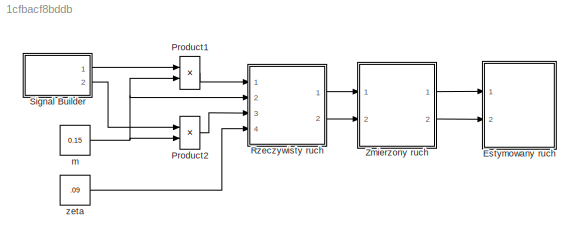
MODEL slx_1cfbacf8bddb
KIND model
CONFIG AbsTol = auto
CONFIG EnableMultiTasking = off
CONFIG FixedStep = 0.01
CONFIG MaxStep = auto
CONFIG MinStep = auto
CONFIG RelTol = 1e-3
CONFIG SampleTimeConstraint = Unconstrained
CONFIG Solver = FixedStepAuto
CONFIG SolverName = FixedStepAuto
CONFIG StartTime = 0.0
CONFIG StopTime = 15
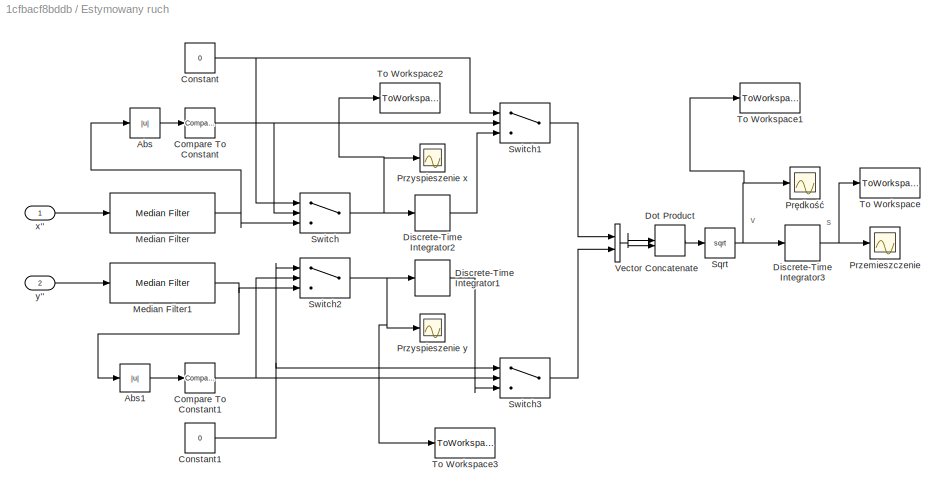
BLOCK [SubSystem] Estymowany ruch
  Ports = [2]
  RequestExecContextInheritance = off
BLOCK [Abs] Estymowany ruch/Abs
  SaturateOnIntegerOverflow = off
BLOCK [Abs] Estymowany ruch/Abs1
  SaturateOnIntegerOverflow = off
BLOCK [Reference] Estymowany ruch/Compare To Constant  REF=simulink/Logic and Bit
Operations/Compare
To Constant
  Ports = [1, 1]
  SourceBlock = simulink/Logic and Bit\nOperations/Compare\nTo Constant
  SourceProductBaseCode = SL
  SourceProductName = Simulink
  SourceType = Compare To Constant
BLOCK [Reference] Estymowany ruch/Compare To Constant1  REF=simulink/Logic and Bit
Operations/Compare
To Constant
  Ports = [1, 1]
  SourceBlock = simulink/Logic and Bit\nOperations/Compare\nTo Constant
  SourceProductBaseCode = SL
  SourceProductName = Simulink
  SourceType = Compare To Constant
BLOCK [Constant] Estymowany ruch/Constant
  Value = 0
BLOCK [Constant] Estymowany ruch/Constant1
  Value = 0
BLOCK [DiscreteIntegrator] Estymowany ruch/Discrete-Time Integrator1
  ICPrevOutput = DiscIntNeverNeededParam
  ICPrevScaledInput = DiscIntNeverNeededParam
  InitialConditionSetting = Auto
  Ports = [1, 1]
  SampleTime = 0.01
BLOCK [DiscreteIntegrator] Estymowany ruch/Discrete-Time Integrator2
  ICPrevOutput = DiscIntNeverNeededParam
  ICPrevScaledInput = DiscIntNeverNeededParam
  InitialConditionSetting = Auto
  Ports = [1, 1]
  SampleTime = 0.01
BLOCK [DiscreteIntegrator] Estymowany ruch/Discrete-Time Integrator3
  ICPrevOutput = DiscIntNeverNeededParam
  ICPrevScaledInput = DiscIntNeverNeededParam
  InitialConditionSetting = Auto
  Ports = [1, 1]
  SampleTime = 0.01
BLOCK [DotProduct] Estymowany ruch/Dot Product
  OutDataTypeStr = Inherit: Inherit via internal rule
BLOCK [Reference] Estymowany ruch/Median Filter  REF=dspstat3/Median
Filter
  Ports = [1, 1]
  SourceBlock = dspstat3/Median\nFilter
  SourceProductBaseCode = DS
  SourceProductName = DSP System Toolbox
  SourceType = dsp.MedianFilter
BLOCK [Reference] Estymowany ruch/Median Filter1  REF=dspstat3/Median
Filter
  Ports = [1, 1]
  SourceBlock = dspstat3/Median\nFilter
  SourceProductBaseCode = DS
  SourceProductName = DSP System Toolbox
  SourceType = dsp.MedianFilter
BLOCK [Scope] Estymowany ruch/Przemieszczenie
  Floating = off
  NumInputPorts = 1
  Ports = [1]
  ScopeSpecificationString = Simulink.scopes.TimeScopeBlockCfg('CurrentConfiguration', extmgr.ConfigurationSet(extmgr.Configuration('Core','General UI',true),extmgr.Configuration('Core','Source UI',true),extmgr.Configuration('Sources','WiredSimulink',true),extmgr.Configuration('Visuals','Time Domain',true,'SerializedDisplays',{struct('MinYLimReal','-0.40724','MaxYLimReal','3.66512','YLabelReal','','MinYLimMag','0.00000','MaxY...<+1386ch>
BLOCK [Scope] Estymowany ruch/Przyspieszenie x
  Floating = off
  NumInputPorts = 1
  Ports = [1]
  ScopeSpecificationString = Simulink.scopes.TimeScopeBlockCfg('CurrentConfiguration', extmgr.ConfigurationSet(extmgr.Configuration('Core','General UI',true),extmgr.Configuration('Core','Source UI',true),extmgr.Configuration('Sources','WiredSimulink',true,'DataLoggingVariableName','ScopeData7'),extmgr.Configuration('Visuals','Time Domain',true,'SerializedDisplays',{struct('MinYLimReal','-0.81861','MaxYLimReal','1.56622','YLab...<+1407ch>
BLOCK [Scope] Estymowany ruch/Przyspieszenie y
  Floating = off
  NumInputPorts = 1
  Ports = [1]
  ScopeSpecificationString = Simulink.scopes.TimeScopeBlockCfg('CurrentConfiguration', extmgr.ConfigurationSet(extmgr.Configuration('Core','General UI',true),extmgr.Configuration('Core','Source UI',true),extmgr.Configuration('Sources','WiredSimulink',true,'DataLoggingVariableName','ScopeData5'),extmgr.Configuration('Visuals','Time Domain',true,'SerializedDisplays',{struct('MinYLimReal','-0.7496','MaxYLimReal','1.48404','YLabe...<+1406ch>
BLOCK [Scope] Estymowany ruch/Prędkość
  Floating = off
  NumInputPorts = 1
  Ports = [1]
  ScopeSpecificationString = Simulink.scopes.TimeScopeBlockCfg('CurrentConfiguration', extmgr.ConfigurationSet(extmgr.Configuration('Core','General UI',true),extmgr.Configuration('Core','Source UI',true),extmgr.Configuration('Sources','WiredSimulink',true,'DataLoggingVariableName','ScopeData1'),extmgr.Configuration('Visuals','Time Domain',true,'SerializedDisplays',{struct('MinYLimReal','-0.15813','MaxYLimReal','1.42315','YLab...<+1405ch>
BLOCK [Sqrt] Estymowany ruch/Sqrt
BLOCK [Switch] Estymowany ruch/Switch
  Criteria = u2 > Threshold
  InputSameDT = off
  SaturateOnIntegerOverflow = off
BLOCK [Switch] Estymowany ruch/Switch1
  Criteria = u2 > Threshold
  InputSameDT = off
  SaturateOnIntegerOverflow = off
BLOCK [Switch] Estymowany ruch/Switch2
  Criteria = u2 > Threshold
  InputSameDT = off
  SaturateOnIntegerOverflow = off
BLOCK [Switch] Estymowany ruch/Switch3
  Criteria = u2 > Threshold
  InputSameDT = off
  SaturateOnIntegerOverflow = off
BLOCK [ToWorkspace] Estymowany ruch/To Workspace
  FixptAsFi = on
  MaxDataPoints = inf
  Ports = [1]
  SampleTime = -1
  Save2DSignal = 2-D array (concatenate along first dimension)
  VariableName = es
BLOCK [ToWorkspace] Estymowany ruch/To Workspace1
  FixptAsFi = on
  MaxDataPoints = inf
  Ports = [1]
  SampleTime = -1
  Save2DSignal = 2-D array (concatenate along first dimension)
  VariableName = ev
BLOCK [ToWorkspace] Estymowany ruch/To Workspace2
  FixptAsFi = on
  MaxDataPoints = inf
  Ports = [1]
  SampleTime = -1
  Save2DSignal = 2-D array (concatenate along first dimension)
  VariableName = ex
BLOCK [ToWorkspace] Estymowany ruch/To Workspace3
  FixptAsFi = on
  MaxDataPoints = inf
  Ports = [1]
  SampleTime = -1
  Save2DSignal = 2-D array (concatenate along first dimension)
  VariableName = ey
BLOCK [Concatenate] Estymowany ruch/Vector Concatenate
  Ports = [2, 1]
BLOCK [Inport] Estymowany ruch/x''
  IconDisplay = Port number
BLOCK [Inport] Estymowany ruch/y''
  IconDisplay = Port number
  Port = 2
BLOCK [Product] Product1
  InputSameDT = off
  Inputs = */
  OutDataTypeStr = Inherit: Inherit via internal rule
  Ports = [2, 1]
  RndMeth = Floor
  SaturateOnIntegerOverflow = off
BLOCK [Product] Product2
  InputSameDT = off
  Inputs = */
  OutDataTypeStr = Inherit: Inherit via internal rule
  Ports = [2, 1]
  RndMeth = Floor
  SaturateOnIntegerOverflow = off
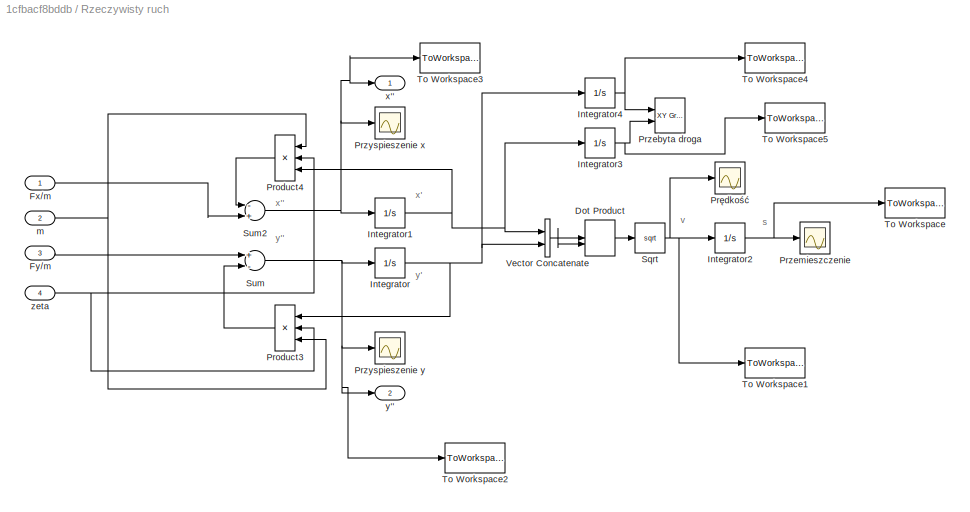
BLOCK [SubSystem] Rzeczywisty ruch
  Ports = [4, 2]
  RequestExecContextInheritance = off
BLOCK [DotProduct] Rzeczywisty ruch/Dot Product
  OutDataTypeStr = Inherit: Inherit via internal rule
BLOCK [Inport] Rzeczywisty ruch/Fx//m
  IconDisplay = Port number
BLOCK [Inport] Rzeczywisty ruch/Fy//m
  IconDisplay = Port number
  Port = 3
BLOCK [Integrator] Rzeczywisty ruch/Integrator
  Ports = [1, 1]
BLOCK [Integrator] Rzeczywisty ruch/Integrator1
  Ports = [1, 1]
BLOCK [Integrator] Rzeczywisty ruch/Integrator2
  Ports = [1, 1]
BLOCK [Integrator] Rzeczywisty ruch/Integrator3
  Ports = [1, 1]
BLOCK [Integrator] Rzeczywisty ruch/Integrator4
  Ports = [1, 1]
BLOCK [Product] Rzeczywisty ruch/Product3
  InputSameDT = off
  Inputs = **/
  OutDataTypeStr = Inherit: Inherit via internal rule
  Ports = [3, 1]
  RndMeth = Floor
  SaturateOnIntegerOverflow = off
BLOCK [Product] Rzeczywisty ruch/Product4
  InputSameDT = off
  Inputs = /**
  OutDataTypeStr = Inherit: Inherit via internal rule
  Ports = [3, 1]
  RndMeth = Floor
  SaturateOnIntegerOverflow = off
BLOCK [Reference] Rzeczywisty ruch/Przebyta droga  REF=simulink/Sinks/XY Graph
  Ports = [2]
  SourceBlock = simulink/Sinks/XY Graph
  SourceProductBaseCode = SL
  SourceProductName = Simulink
  SourceType = XY scope.
BLOCK [Scope] Rzeczywisty ruch/Przemieszczenie
  Floating = off
  NumInputPorts = 1
  Ports = [1]
  ScopeSpecificationString = Simulink.scopes.TimeScopeBlockCfg('CurrentConfiguration', extmgr.ConfigurationSet(extmgr.Configuration('Core','General UI',true),extmgr.Configuration('Core','Source UI',true),extmgr.Configuration('Sources','WiredSimulink',true),extmgr.Configuration('Visuals','Time Domain',true,'SerializedDisplays',{struct('MinYLimReal','-0.40695','MaxYLimReal','3.66252','YLabelReal','','MinYLimMag','0.00000','MaxY...<+1386ch>
BLOCK [Scope] Rzeczywisty ruch/Przyspieszenie x
  Floating = off
  NumInputPorts = 1
  Ports = [1]
  ScopeSpecificationString = Simulink.scopes.TimeScopeBlockCfg('CurrentConfiguration', extmgr.ConfigurationSet(extmgr.Configuration('Core','General UI',true),extmgr.Configuration('Core','Source UI',true),extmgr.Configuration('Sources','WiredSimulink',true,'DataLoggingVariableName','ScopeData2'),extmgr.Configuration('Visuals','Time Domain',true,'SerializedDisplays',{struct('MinYLimReal','-0.84345','MaxYLimReal','1.5752','YLabe...<+1413ch>
BLOCK [Scope] Rzeczywisty ruch/Przyspieszenie y
  Floating = off
  NumInputPorts = 1
  Ports = [1]
  ScopeSpecificationString = Simulink.scopes.TimeScopeBlockCfg('CurrentConfiguration', extmgr.ConfigurationSet(extmgr.Configuration('Core','General UI',true),extmgr.Configuration('Core','Source UI',true),extmgr.Configuration('Sources','WiredSimulink',true,'DataLoggingVariableName','ScopeData3'),extmgr.Configuration('Visuals','Time Domain',true,'SerializedDisplays',{struct('MinYLimReal','-0.84345','MaxYLimReal','1.5752','YLabe...<+1358ch>
BLOCK [Scope] Rzeczywisty ruch/Prędkość
  Floating = off
  NumInputPorts = 1
  Ports = [1]
  ScopeSpecificationString = Simulink.scopes.TimeScopeBlockCfg('CurrentConfiguration', extmgr.ConfigurationSet(extmgr.Configuration('Core','General UI',true),extmgr.Configuration('Core','Source UI',true),extmgr.Configuration('Sources','WiredSimulink',true,'DataLoggingVariableName','ScopeData1'),extmgr.Configuration('Visuals','Time Domain',true,'SerializedDisplays',{struct('MinYLimReal','-0.15597','MaxYLimReal','1.40377','YLab...<+1363ch>
BLOCK [Sqrt] Rzeczywisty ruch/Sqrt
BLOCK [Sum] Rzeczywisty ruch/Sum
  InputSameDT = off
  Inputs = +-
  OutDataTypeStr = Inherit: Inherit via internal rule
  Ports = [2, 1]
  SaturateOnIntegerOverflow = off
BLOCK [Sum] Rzeczywisty ruch/Sum2
  InputSameDT = off
  Inputs = -+
  OutDataTypeStr = Inherit: Inherit via internal rule
  Ports = [2, 1]
  SaturateOnIntegerOverflow = off
BLOCK [ToWorkspace] Rzeczywisty ruch/To Workspace
  FixptAsFi = on
  MaxDataPoints = inf
  Ports = [1]
  SampleTime = -1
  Save2DSignal = 3-D array (concatenate along third dimension)
  SaveFormat = Timeseries
  VariableName = rs
BLOCK [ToWorkspace] Rzeczywisty ruch/To Workspace1
  FixptAsFi = on
  MaxDataPoints = inf
  Ports = [1]
  SampleTime = -1
  Save2DSignal = 3-D array (concatenate along third dimension)
  SaveFormat = Timeseries
  VariableName = rv
BLOCK [ToWorkspace] Rzeczywisty ruch/To Workspace2
  FixptAsFi = on
  MaxDataPoints = inf
  Ports = [1]
  SampleTime = -1
  Save2DSignal = 3-D array (concatenate along third dimension)
  SaveFormat = Timeseries
  VariableName = ry
BLOCK [ToWorkspace] Rzeczywisty ruch/To Workspace3
  FixptAsFi = on
  MaxDataPoints = inf
  Ports = [1]
  SampleTime = -1
  Save2DSignal = 3-D array (concatenate along third dimension)
  SaveFormat = Timeseries
  VariableName = rx
BLOCK [ToWorkspace] Rzeczywisty ruch/To Workspace4
  FixptAsFi = on
  MaxDataPoints = inf
  Ports = [1]
  SampleTime = -1
  Save2DSignal = 2-D array (concatenate along first dimension)
  VariableName = xs
BLOCK [ToWorkspace] Rzeczywisty ruch/To Workspace5
  FixptAsFi = on
  MaxDataPoints = inf
  Ports = [1]
  SampleTime = -1
  Save2DSignal = 2-D array (concatenate along first dimension)
  VariableName = ys
BLOCK [Concatenate] Rzeczywisty ruch/Vector Concatenate
  Ports = [2, 1]
BLOCK [Inport] Rzeczywisty ruch/m
  IconDisplay = Port number
  Port = 2
BLOCK [Outport] Rzeczywisty ruch/x''
  IconDisplay = Port number
BLOCK [Outport] Rzeczywisty ruch/y''
  IconDisplay = Port number
  Port = 2
BLOCK [Inport] Rzeczywisty ruch/zeta
  IconDisplay = Port number
  Port = 4
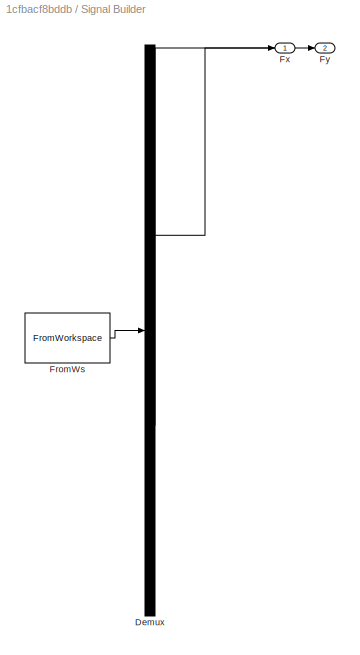
BLOCK [SubSystem] Signal Builder
  ClipboardFcn = sigbuilder_block('clipboard');
  CloseFcn = sigbuilder_block('close');
  ContinueFcn = sigbuilder_block('continue');
  CopyFcn = sigbuilder_block('copy');
  DeleteFcn = sigbuilder_block('delete');
  LoadFcn = sigbuilder_block('load');
  MaskHideContents = on
  ModelCloseFcn = sigbuilder_block('modelClose');
  NameChangeFcn = sigbuilder_block('namechange');
  OpenFcn = sigbuilder_block('open',[75.5 61.5 550.5 362.5 ]);
  PauseFcn = sigbuilder_block('pause');
  Ports = [0, 2]
  PreSaveFcn = sigbuilder_block('preSave');
  RequestExecContextInheritance = off
  StartFcn = sigbuilder_block('start');
  StopFcn = sigbuilder_block('stop');
  Tag = STV Subsys
BLOCK [Demux] Signal Builder/Demux
  Outputs = 2
  Ports = [1, 2]
  Tag = STV Demux
BLOCK [FromWorkspace] Signal Builder/FromWs
  SampleTime = 0
  Tag = STV FromWs
  VariableName = tuvar
  ZeroCross = on
BLOCK [Outport] Signal Builder/Fx
  IconDisplay = Port number
  Tag = STV Outport
BLOCK [Outport] Signal Builder/Fy
  IconDisplay = Port number
  Port = 2
  Tag = STV Outport
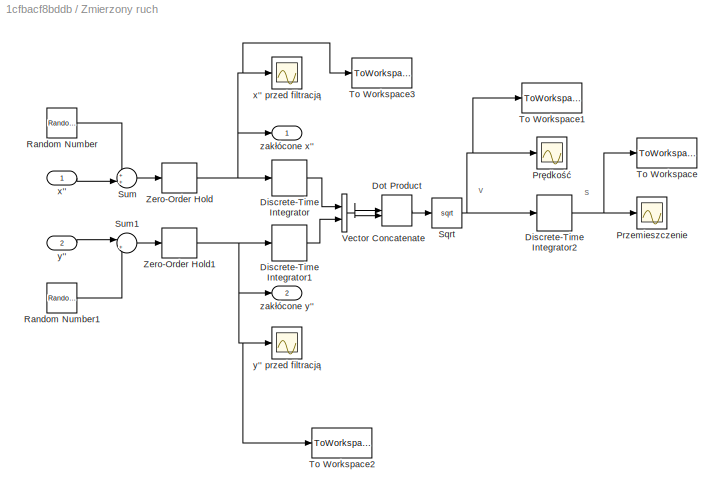
BLOCK [SubSystem] Zmierzony ruch
  Ports = [2, 2]
  RequestExecContextInheritance = off
BLOCK [DiscreteIntegrator] Zmierzony ruch/Discrete-Time Integrator
  ICPrevOutput = DiscIntNeverNeededParam
  ICPrevScaledInput = DiscIntNeverNeededParam
  InitialConditionSetting = Auto
  Ports = [1, 1]
  SampleTime = 0.01
BLOCK [DiscreteIntegrator] Zmierzony ruch/Discrete-Time Integrator1
  ICPrevOutput = DiscIntNeverNeededParam
  ICPrevScaledInput = DiscIntNeverNeededParam
  InitialConditionSetting = Auto
  Ports = [1, 1]
  SampleTime = 0.01
BLOCK [DiscreteIntegrator] Zmierzony ruch/Discrete-Time Integrator2
  ICPrevOutput = DiscIntNeverNeededParam
  ICPrevScaledInput = DiscIntNeverNeededParam
  InitialConditionSetting = Auto
  Ports = [1, 1]
  SampleTime = 0.01
BLOCK [DotProduct] Zmierzony ruch/Dot Product
  OutDataTypeStr = Inherit: Inherit via internal rule
BLOCK [Scope] Zmierzony ruch/Przemieszczenie
  Floating = off
  NumInputPorts = 1
  Ports = [1]
  ScopeSpecificationString = Simulink.scopes.TimeScopeBlockCfg('CurrentConfiguration', extmgr.ConfigurationSet(extmgr.Configuration('Core','General UI',true),extmgr.Configuration('Core','Source UI',true),extmgr.Configuration('Sources','WiredSimulink',true),extmgr.Configuration('Visuals','Time Domain',true,'SerializedDisplays',{struct('MinYLimReal','-0.50337','MaxYLimReal','4.53031','YLabelReal','','MinYLimMag','0.00000','MaxY...<+1373ch>
BLOCK [Scope] Zmierzony ruch/Prędkość
  Floating = off
  NumInputPorts = 1
  Ports = [1]
  ScopeSpecificationString = Simulink.scopes.TimeScopeBlockCfg('CurrentConfiguration', extmgr.ConfigurationSet(extmgr.Configuration('Core','General UI',true),extmgr.Configuration('Core','Source UI',true),extmgr.Configuration('Sources','WiredSimulink',true,'DataLoggingVariableName','ScopeData1'),extmgr.Configuration('Visuals','Time Domain',true,'SerializedDisplays',{struct('MinYLimReal','-0.15862','MaxYLimReal','1.42756','YLab...<+1405ch>
BLOCK [RandomNumber] Zmierzony ruch/Random Number
  Mean = 0.005
  SampleTime = 0.01
  Variance = 0.005
BLOCK [RandomNumber] Zmierzony ruch/Random Number1
  Mean = 0.005
  SampleTime = 0.01
  Variance = 0.005
BLOCK [Sqrt] Zmierzony ruch/Sqrt
BLOCK [Sum] Zmierzony ruch/Sum
  IconShape = round
  InputSameDT = off
  Inputs = ++|
  OutDataTypeStr = Inherit: Inherit via internal rule
  Ports = [2, 1]
  SaturateOnIntegerOverflow = off
BLOCK [Sum] Zmierzony ruch/Sum1
  IconShape = round
  InputSameDT = off
  Inputs = |++
  OutDataTypeStr = Inherit: Inherit via internal rule
  Ports = [2, 1]
  SaturateOnIntegerOverflow = off
BLOCK [ToWorkspace] Zmierzony ruch/To Workspace
  FixptAsFi = on
  MaxDataPoints = inf
  Ports = [1]
  SampleTime = -1
  Save2DSignal = 3-D array (concatenate along third dimension)
  SaveFormat = Timeseries
  VariableName = ms
BLOCK [ToWorkspace] Zmierzony ruch/To Workspace1
  FixptAsFi = on
  MaxDataPoints = inf
  Ports = [1]
  SampleTime = -1
  Save2DSignal = 3-D array (concatenate along third dimension)
  SaveFormat = Timeseries
  VariableName = mv
BLOCK [ToWorkspace] Zmierzony ruch/To Workspace2
  FixptAsFi = on
  MaxDataPoints = inf
  Ports = [1]
  SampleTime = -1
  Save2DSignal = 3-D array (concatenate along third dimension)
  SaveFormat = Timeseries
  VariableName = my
BLOCK [ToWorkspace] Zmierzony ruch/To Workspace3
  FixptAsFi = on
  MaxDataPoints = inf
  Ports = [1]
  SampleTime = -1
  Save2DSignal = 3-D array (concatenate along third dimension)
  SaveFormat = Timeseries
  VariableName = mx
BLOCK [Concatenate] Zmierzony ruch/Vector Concatenate
  Ports = [2, 1]
BLOCK [ZeroOrderHold] Zmierzony ruch/Zero-Order Hold
  SampleTime = 0.01
BLOCK [ZeroOrderHold] Zmierzony ruch/Zero-Order Hold1
  SampleTime = 0.01
BLOCK [Inport] Zmierzony ruch/x''
  IconDisplay = Port number
BLOCK [Scope] Zmierzony ruch/x'' przed filtracją
  Floating = off
  NumInputPorts = 1
  Ports = [1]
  ScopeSpecificationString = Simulink.scopes.TimeScopeBlockCfg('CurrentConfiguration', extmgr.ConfigurationSet(extmgr.Configuration('Core','General UI',true),extmgr.Configuration('Core','Source UI',true),extmgr.Configuration('Sources','WiredSimulink',true,'DataLoggingVariableName','ScopeData4'),extmgr.Configuration('Visuals','Time Domain',true,'SerializedDisplays',{struct('MinYLimReal','-0.91581','MaxYLimReal','1.68307','YLab...<+1429ch>
BLOCK [Inport] Zmierzony ruch/y''
  IconDisplay = Port number
  Port = 2
BLOCK [Scope] Zmierzony ruch/y'' przed filtracją
  Floating = off
  NumInputPorts = 1
  Ports = [1]
  ScopeSpecificationString = Simulink.scopes.TimeScopeBlockCfg('CurrentConfiguration', extmgr.ConfigurationSet(extmgr.Configuration('Core','General UI',true),extmgr.Configuration('Core','Source UI',true),extmgr.Configuration('Sources','WiredSimulink',true,'DataLoggingVariableName','ScopeData6'),extmgr.Configuration('Visuals','Time Domain',true,'SerializedDisplays',{struct('MinYLimReal','-0.87455','MaxYLimReal','1.66453','YLab...<+1429ch>
BLOCK [Outport] Zmierzony ruch/zakłócone x''
  IconDisplay = Port number
BLOCK [Outport] Zmierzony ruch/zakłócone y''
  IconDisplay = Port number
  Port = 2
BLOCK [Constant] m
  Value = 0.15
BLOCK [Constant] zeta
  Value = .09
ANNOTATION Estymowany ruch: s
ANNOTATION Estymowany ruch: v
ANNOTATION Rzeczywisty ruch: s
ANNOTATION Rzeczywisty ruch: v
ANNOTATION Rzeczywisty ruch: x'
ANNOTATION Rzeczywisty ruch: x''
ANNOTATION Rzeczywisty ruch: y'
ANNOTATION Rzeczywisty ruch: y''
ANNOTATION Zmierzony ruch: s
ANNOTATION Zmierzony ruch: v
LINE Estymowany ruch/Abs1:1 -> Estymowany ruch/Compare To Constant1:1
LINE Estymowany ruch/Abs:1 -> Estymowany ruch/Compare To Constant:1
NET Estymowany ruch/Compare To Constant1:1 -> Estymowany ruch/Switch2:2, Estymowany ruch/Switch3:2
NET Estymowany ruch/Compare To Constant:1 -> Estymowany ruch/Switch1:2, Estymowany ruch/Switch:2
NET Estymowany ruch/Constant1:1 -> Estymowany ruch/Switch2:1, Estymowany ruch/Switch3:1
NET Estymowany ruch/Constant:1 -> Estymowany ruch/Switch1:1, Estymowany ruch/Switch:1
LINE Estymowany ruch/Discrete-Time Integrator1:1 -> Estymowany ruch/Switch3:3
LINE Estymowany ruch/Discrete-Time Integrator2:1 -> Estymowany ruch/Switch1:3
NET Estymowany ruch/Discrete-Time Integrator3:1 -> Estymowany ruch/Przemieszczenie:1, Estymowany ruch/To Workspace:1
LINE Estymowany ruch/Dot Product:1 -> Estymowany ruch/Sqrt:1
NET Estymowany ruch/Median Filter1:1 -> Estymowany ruch/Abs1:1, Estymowany ruch/Switch2:3
NET Estymowany ruch/Median Filter:1 -> Estymowany ruch/Abs:1, Estymowany ruch/Switch:3
NET Estymowany ruch/Sqrt:1 -> Estymowany ruch/Discrete-Time Integrator3:1, Estymowany ruch/Prędkość:1, Estymowany ruch/To Workspace1:1
LINE Estymowany ruch/Switch1:1 -> Estymowany ruch/Vector Concatenate:1
NET Estymowany ruch/Switch2:1 -> Estymowany ruch/Discrete-Time Integrator1:1, Estymowany ruch/Przyspieszenie y:1, Estymowany ruch/To Workspace3:1
LINE Estymowany ruch/Switch3:1 -> Estymowany ruch/Vector Concatenate:2
NET Estymowany ruch/Switch:1 -> Estymowany ruch/Discrete-Time Integrator2:1, Estymowany ruch/Przyspieszenie x:1, Estymowany ruch/To Workspace2:1
NET Estymowany ruch/Vector Concatenate:1 -> Estymowany ruch/Dot Product:1, Estymowany ruch/Dot Product:2
LINE Estymowany ruch/x'':1 -> Estymowany ruch/Median Filter:1
LINE Estymowany ruch/y'':1 -> Estymowany ruch/Median Filter1:1
LINE Product1:1 -> Rzeczywisty ruch:1
LINE Product2:1 -> Rzeczywisty ruch:3
LINE Rzeczywisty ruch/Dot Product:1 -> Rzeczywisty ruch/Sqrt:1
LINE Rzeczywisty ruch/Fx//m:1 -> Rzeczywisty ruch/Sum2:2
LINE Rzeczywisty ruch/Fy//m:1 -> Rzeczywisty ruch/Sum:1
NET Rzeczywisty ruch/Integrator1:1 -> Rzeczywisty ruch/Integrator3:1, Rzeczywisty ruch/Product4:3, Rzeczywisty ruch/Vector Concatenate:1
NET Rzeczywisty ruch/Integrator2:1 -> Rzeczywisty ruch/Przemieszczenie:1, Rzeczywisty ruch/To Workspace:1
NET Rzeczywisty ruch/Integrator3:1 -> Rzeczywisty ruch/Przebyta droga:2, Rzeczywisty ruch/To Workspace5:1
NET Rzeczywisty ruch/Integrator4:1 -> Rzeczywisty ruch/Przebyta droga:1, Rzeczywisty ruch/To Workspace4:1
NET Rzeczywisty ruch/Integrator:1 -> Rzeczywisty ruch/Integrator4:1, Rzeczywisty ruch/Product3:1, Rzeczywisty ruch/Vector Concatenate:2
LINE Rzeczywisty ruch/Product3:1 -> Rzeczywisty ruch/Sum:2
LINE Rzeczywisty ruch/Product4:1 -> Rzeczywisty ruch/Sum2:1
NET Rzeczywisty ruch/Sqrt:1 -> Rzeczywisty ruch/Integrator2:1, Rzeczywisty ruch/Prędkość:1, Rzeczywisty ruch/To Workspace1:1
NET Rzeczywisty ruch/Sum2:1 -> Rzeczywisty ruch/Integrator1:1, Rzeczywisty ruch/Przyspieszenie x:1, Rzeczywisty ruch/To Workspace3:1, Rzeczywisty ruch/x'':1
NET Rzeczywisty ruch/Sum:1 -> Rzeczywisty ruch/Integrator:1, Rzeczywisty ruch/Przyspieszenie y:1, Rzeczywisty ruch/To Workspace2:1, Rzeczywisty ruch/y'':1
NET Rzeczywisty ruch/Vector Concatenate:1 -> Rzeczywisty ruch/Dot Product:1, Rzeczywisty ruch/Dot Product:2
NET Rzeczywisty ruch/m:1 -> Rzeczywisty ruch/Product3:3, Rzeczywisty ruch/Product4:1
NET Rzeczywisty ruch/zeta:1 -> Rzeczywisty ruch/Product3:2, Rzeczywisty ruch/Product4:2
LINE Rzeczywisty ruch:1 -> Zmierzony ruch:1
LINE Rzeczywisty ruch:2 -> Zmierzony ruch:2
LINE Signal Builder:1 -> Product1:1
LINE Signal Builder:2 -> Product2:1
LINE Zmierzony ruch/Discrete-Time Integrator1:1 -> Zmierzony ruch/Vector Concatenate:2
NET Zmierzony ruch/Discrete-Time Integrator2:1 -> Zmierzony ruch/Przemieszczenie:1, Zmierzony ruch/To Workspace:1
LINE Zmierzony ruch/Discrete-Time Integrator:1 -> Zmierzony ruch/Vector Concatenate:1
LINE Zmierzony ruch/Dot Product:1 -> Zmierzony ruch/Sqrt:1
LINE Zmierzony ruch/Random Number1:1 -> Zmierzony ruch/Sum1:2
LINE Zmierzony ruch/Random Number:1 -> Zmierzony ruch/Sum:1
NET Zmierzony ruch/Sqrt:1 -> Zmierzony ruch/Discrete-Time Integrator2:1, Zmierzony ruch/Prędkość:1, Zmierzony ruch/To Workspace1:1
LINE Zmierzony ruch/Sum1:1 -> Zmierzony ruch/Zero-Order Hold1:1
LINE Zmierzony ruch/Sum:1 -> Zmierzony ruch/Zero-Order Hold:1
NET Zmierzony ruch/Vector Concatenate:1 -> Zmierzony ruch/Dot Product:1, Zmierzony ruch/Dot Product:2
NET Zmierzony ruch/Zero-Order Hold1:1 -> Zmierzony ruch/Discrete-Time Integrator1:1, Zmierzony ruch/To Workspace2:1, Zmierzony ruch/y'' przed filtracją:1, Zmierzony ruch/zakłócone y'':1
NET Zmierzony ruch/Zero-Order Hold:1 -> Zmierzony ruch/Discrete-Time Integrator:1, Zmierzony ruch/To Workspace3:1, Zmierzony ruch/x'' przed filtracją:1, Zmierzony ruch/zakłócone x'':1
LINE Zmierzony ruch/x'':1 -> Zmierzony ruch/Sum:2
LINE Zmierzony ruch/y'':1 -> Zmierzony ruch/Sum1:1
LINE Zmierzony ruch:1 -> Estymowany ruch:1
LINE Zmierzony ruch:2 -> Estymowany ruch:2
NET m:1 -> Product1:2, Product2:2, Rzeczywisty ruch:2
LINE zeta:1 -> Rzeczywisty ruch:4
note: NET lines group one-source signal fan-out (src -> all destinations, sorted); 1:1 wires keep LINE
